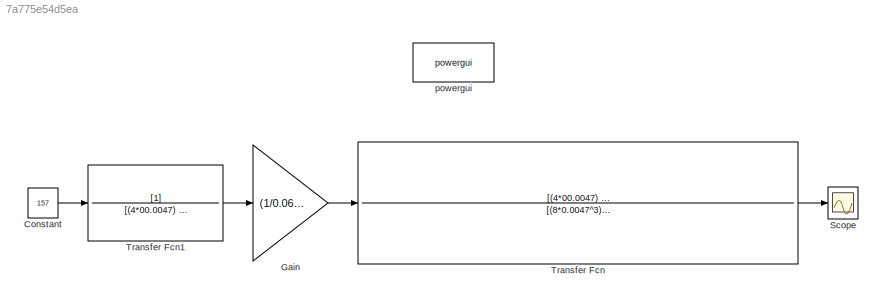
MODEL slx_7a775e54d5ea
KIND model
CONFIG AbsTol = auto
CONFIG EnableMultiTasking = off
CONFIG FixedStep = 50e-8
CONFIG MaxStep = auto
CONFIG MinStep = auto
CONFIG RelTol = 1e-3
CONFIG SampleTimeConstraint = Unconstrained
CONFIG SolverName = FixedStepAuto
CONFIG StartTime = 0.0
CONFIG StopTime = 10.0
BLOCK [Constant] Constant
  Value = 157
BLOCK [Gain] Gain
  Gain = (1/0.065)
BLOCK [Scope] Scope
  Floating = off
  NumInputPorts = 1
  ScopeSpecificationString = Simulink.scopes.TimeScopeBlockCfg('CurrentConfiguration', extmgr.ConfigurationSet(extmgr.Configuration('Core','General UI',true),extmgr.Configuration('Core','Source UI',true),extmgr.Configuration('Sources','WiredSimulink',true),extmgr.Configuration('Visuals','Time Domain',true,'SerializedDisplays',{struct('MinYLimReal','-301.92308','MaxYLimReal','2717.30769','YLabelReal','','MinYLimMag',' 0.00000'...<+1430ch>
BLOCK [TransferFcn] Transfer Fcn
  Denominator = [(8*0.0047^3)  (8*0.0047^2)  (8*0.0047)  1]
  Numerator = [(4*00.0047) 1]
BLOCK [TransferFcn] Transfer Fcn1
  Denominator = [(4*00.0047) 1]
BLOCK [Reference] powergui  REF=spspowerguiLib/powergui
  LibrarySourceBlock = sps_lib/powergui
  Priority = 1
  SourceBlock = spspowerguiLib/powergui
  SourceType = PSB option menu block
LINE Constant:1 -> Transfer Fcn1:1
LINE Gain:1 -> Transfer Fcn:1
LINE Transfer Fcn1:1 -> Gain:1
LINE Transfer Fcn:1 -> Scope:1
